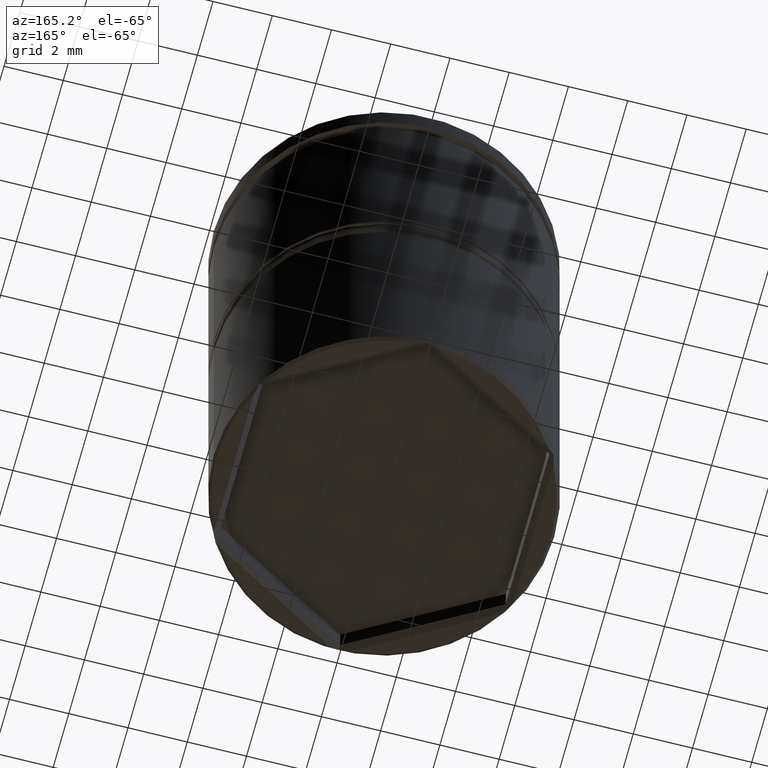
[diagram: clean part render]
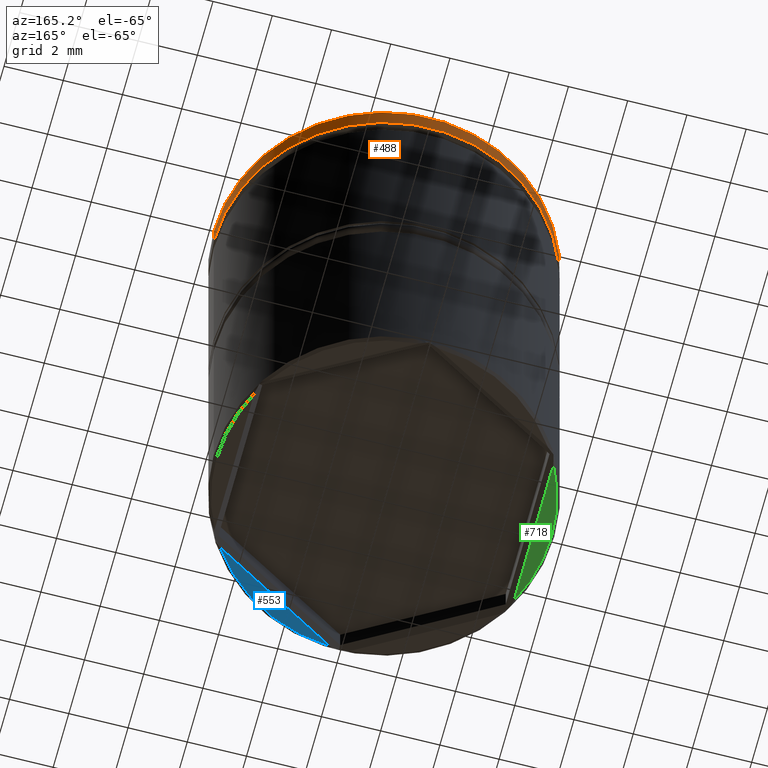
[diagram: same view with three faces highlighted in distinct colors, each labeled with its STEP entity id]
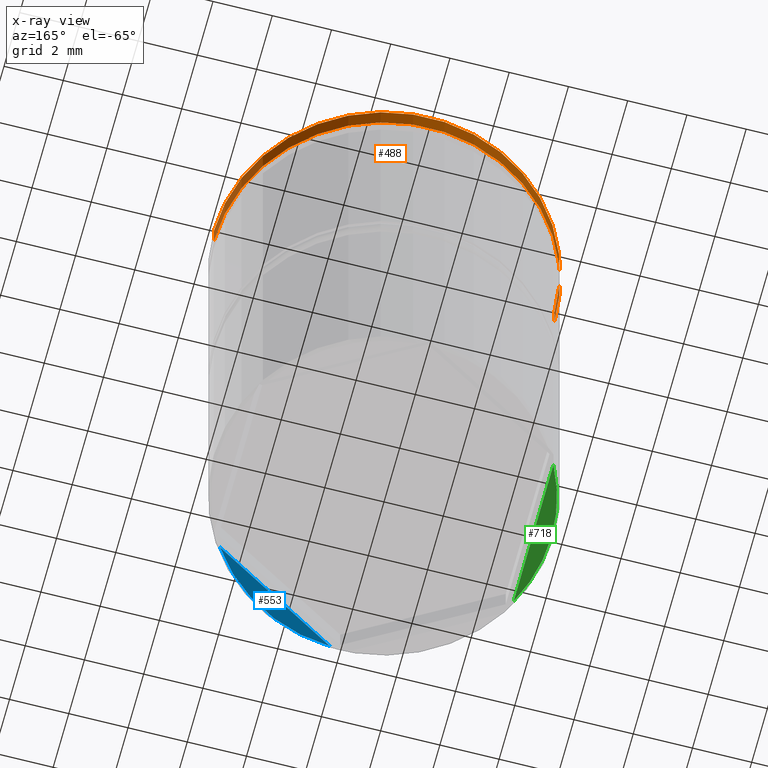
[diagram: x-ray of the same camera — body ghosted, the three highlighted faces saturated]
A machine part, auxiliary view with three faces highlighted in distinct colors.
The next image is the same camera in x-ray (body ghosted, the three faces saturated) — at least one of them is partly hidden behind the body in this view.
Their STEP definitions:

[orange] entity #488 — the highlighted cylindrical surface (partial cylindrical patch) has radius 5.75 mm, axis along (-0, -0, 1).
#4 = DIRECTION ( 'NONE',  ( -0.000000000000000000, -0.000000000000000000, 1.000000000000000000 ) ) ;
#12 = CIRCLE ( 'NONE', #1099, 5.750000000000000000 ) ;
#121 = ORIENTED_EDGE ( 'NONE', *, *, #450, .T. ) ;
#150 = CARTESIAN_POINT ( 'NONE',  ( 5.750000000000000000, 0.000000000000000000, 0.000000000000000000 ) ) ;
#199 = CARTESIAN_POINT ( 'NONE',  ( 0.000000000000000000, 0.000000000000000000, -0.09999999999999506506 ) ) ;
#242 = ORIENTED_EDGE ( 'NONE', *, *, #330, .F. ) ;
#324 = DIRECTION ( 'NONE',  ( 1.000000000000000000, 0.000000000000000000, 0.000000000000000000 ) ) ;
#330 = EDGE_CURVE ( 'NONE', #458, #359, #1087, .T. ) ;
#359 = VERTEX_POINT ( 'NONE', #1316 ) ;
#438 = DIRECTION ( 'NONE',  ( 1.000000000000000000, 0.000000000000000000, 0.000000000000000000 ) ) ;
#450 = EDGE_CURVE ( 'NONE', #1313, #359, #466, .T. ) ;
#451 = ORIENTED_EDGE ( 'NONE', *, *, #1058, .T. ) ;
#458 = VERTEX_POINT ( 'NONE', #1259 ) ;
#466 = CIRCLE ( 'NONE', #1074, 5.750000000000000000 ) ;
#488 = ADVANCED_FACE ( 'NONE', ( #1369 ), #1154, .T. ) ;
#508 = DIRECTION ( 'NONE',  ( 1.000000000000000000, 0.000000000000000000, 0.000000000000000000 ) ) ;
#564 = CARTESIAN_POINT ( 'NONE',  ( -5.750000000000000000, 7.041719095097280880E-16, -0.09999999999999506506 ) ) ;
#723 = VECTOR ( 'NONE', #1104, 1000.000000000000000 ) ;
#744 = DIRECTION ( 'NONE',  ( 0.000000000000000000, 0.000000000000000000, -1.000000000000000000 ) ) ;
#809 = CARTESIAN_POINT ( 'NONE',  ( 0.000000000000000000, 0.000000000000000000, 0.000000000000000000 ) ) ;
#821 = VECTOR ( 'NONE', #1139, 1000.000000000000000 ) ;
#897 = VERTEX_POINT ( 'NONE', #1025 ) ;
#916 = CARTESIAN_POINT ( 'NONE',  ( -5.750000000000000000, 7.041719095097280880E-16, 0.000000000000000000 ) ) ;
#958 = CARTESIAN_POINT ( 'NONE',  ( 0.000000000000000000, 0.000000000000000000, -0.8749999999999998890 ) ) ;
#985 = ORIENTED_EDGE ( 'NONE', *, *, #1121, .T. ) ;
#1010 = EDGE_LOOP ( 'NONE', ( #985, #451, #121, #242 ) ) ;
#1025 = CARTESIAN_POINT ( 'NONE',  ( -5.750000000000000000, 7.041719095097280880E-16, -0.8749999999999998890 ) ) ;
#1033 = DIRECTION ( 'NONE',  ( -0.000000000000000000, -0.000000000000000000, 1.000000000000000000 ) ) ;
#1058 = EDGE_CURVE ( 'NONE', #897, #1313, #1351, .T. ) ;
#1074 = AXIS2_PLACEMENT_3D ( 'NONE', #199, #744, #324 ) ;
#1087 = LINE ( 'NONE', #150, #723 ) ;
#1099 = AXIS2_PLACEMENT_3D ( 'NONE', #958, #4, #438 ) ;
#1104 = DIRECTION ( 'NONE',  ( -0.000000000000000000, -0.000000000000000000, 1.000000000000000000 ) ) ;
#1121 = EDGE_CURVE ( 'NONE', #458, #897, #12, .T. ) ;
#1139 = DIRECTION ( 'NONE',  ( -0.000000000000000000, -0.000000000000000000, 1.000000000000000000 ) ) ;
#1154 = CYLINDRICAL_SURFACE ( 'NONE', #1210, 5.750000000000000000 ) ;
#1210 = AXIS2_PLACEMENT_3D ( 'NONE', #809, #1033, #508 ) ;
#1259 = CARTESIAN_POINT ( 'NONE',  ( 5.750000000000000000, 0.000000000000000000, -0.8749999999999998890 ) ) ;
#1313 = VERTEX_POINT ( 'NONE', #564 ) ;
#1316 = CARTESIAN_POINT ( 'NONE',  ( 5.750000000000000000, 0.000000000000000000, -0.09999999999999506506 ) ) ;
#1351 = LINE ( 'NONE', #916, #821 ) ;
#1369 = FACE_OUTER_BOUND ( 'NONE', #1010, .T. ) ;

[blue] entity #553 — the highlighted planar face has unit normal (0, 0, -1).
#26 = DIRECTION ( 'NONE',  ( 0.000000000000000000, 0.000000000000000000, -1.000000000000000000 ) ) ;
#48 = EDGE_CURVE ( 'NONE', #1312, #1078, #506, .T. ) ;
#140 = CARTESIAN_POINT ( 'NONE',  ( 0.3306891742508328291, -5.640314235043405233, -17.50000000000000000 ) ) ;
#218 = AXIS2_PLACEMENT_3D ( 'NONE', #559, #26, #898 ) ;
#248 = ORIENTED_EDGE ( 'NONE', *, *, #1173, .T. ) ;
#262 = AXIS2_PLACEMENT_3D ( 'NONE', #1348, #1042, #504 ) ;
#372 = ORIENTED_EDGE ( 'NONE', *, *, #48, .T. ) ;
#501 = CARTESIAN_POINT ( 'NONE',  ( 4.719310825749163385, -3.106542343179425458, -17.50000000000000000 ) ) ;
#504 = DIRECTION ( 'NONE',  ( -1.000000000000000000, 0.000000000000000000, -0.000000000000000000 ) ) ;
#506 = LINE ( 'NONE', #917, #532 ) ;
#517 = PLANE ( 'NONE',  #262 ) ;
#532 = VECTOR ( 'NONE', #814, 1000.000000000000114 ) ;
#553 = ADVANCED_FACE ( 'NONE', ( #1264 ), #517, .T. ) ;
#556 = CIRCLE ( 'NONE', #218, 5.649999999999996803 ) ;
#559 = CARTESIAN_POINT ( 'NONE',  ( 0.000000000000000000, 0.000000000000000000, -17.50000000000000000 ) ) ;
#814 = DIRECTION ( 'NONE',  ( 0.8660254037844388186, 0.4999999999999997780, 0.000000000000000000 ) ) ;
#898 = DIRECTION ( 'NONE',  ( -1.000000000000000000, 0.000000000000000000, 0.000000000000000000 ) ) ;
#917 = CARTESIAN_POINT ( 'NONE',  ( 4.949999999999997513, -2.973353886326572937, -17.50000000000000000 ) ) ;
#980 = EDGE_LOOP ( 'NONE', ( #248, #372 ) ) ;
#1042 = DIRECTION ( 'NONE',  ( 0.000000000000000000, 0.000000000000000000, -1.000000000000000000 ) ) ;
#1078 = VERTEX_POINT ( 'NONE', #501 ) ;
#1173 = EDGE_CURVE ( 'NONE', #1078, #1312, #556, .T. ) ;
#1264 = FACE_OUTER_BOUND ( 'NONE', #980, .T. ) ;
#1312 = VERTEX_POINT ( 'NONE', #140 ) ;
#1348 = CARTESIAN_POINT ( 'NONE',  ( 0.000000000000000000, 5.750000000000000000, -17.50000000000000000 ) ) ;

[green] entity #718 — the highlighted planar face has unit normal (0, 0, -1).
#15 = CARTESIAN_POINT ( 'NONE',  ( -5.649999999999996803, 6.980486755139910150E-16, -17.50000000000000000 ) ) ;
#40 = DIRECTION ( 'NONE',  ( 0.000000000000000000, 0.000000000000000000, -1.000000000000000000 ) ) ;
#46 = CARTESIAN_POINT ( 'NONE',  ( 0.000000000000000000, 0.000000000000000000, -17.50000000000000000 ) ) ;
#49 = VERTEX_POINT ( 'NONE', #1236 ) ;
#63 = DIRECTION ( 'NONE',  ( -1.000000000000000000, 0.000000000000000000, 0.000000000000000000 ) ) ;
#162 = DIRECTION ( 'NONE',  ( 0.000000000000000000, 0.000000000000000000, -1.000000000000000000 ) ) ;
#331 = CIRCLE ( 'NONE', #444, 5.649999999999996803 ) ;
#350 = FACE_OUTER_BOUND ( 'NONE', #1084, .T. ) ;
#358 = DIRECTION ( 'NONE',  ( 0.000000000000000000, 0.000000000000000000, -1.000000000000000000 ) ) ;
#374 = AXIS2_PLACEMENT_3D ( 'NONE', #908, #162, #1336 ) ;
#381 = VERTEX_POINT ( 'NONE', #469 ) ;
#389 = EDGE_CURVE ( 'NONE', #381, #674, #1265, .T. ) ;
#444 = AXIS2_PLACEMENT_3D ( 'NONE', #46, #40, #63 ) ;
#449 = CARTESIAN_POINT ( 'NONE',  ( 0.000000000000000000, 5.750000000000000000, -17.50000000000000000 ) ) ;
#469 = CARTESIAN_POINT ( 'NONE',  ( -5.049999999999998934, -2.533771891863980663, -17.50000000000000000 ) ) ;
#551 = PLANE ( 'NONE',  #676 ) ;
#554 = VECTOR ( 'NONE', #961, 1000.000000000000000 ) ;
#650 = EDGE_CURVE ( 'NONE', #49, #381, #1300, .T. ) ;
#674 = VERTEX_POINT ( 'NONE', #15 ) ;
#676 = AXIS2_PLACEMENT_3D ( 'NONE', #449, #358, #1088 ) ;
#718 = ADVANCED_FACE ( 'NONE', ( #350 ), #551, .T. ) ;
#865 = EDGE_CURVE ( 'NONE', #674, #49, #331, .T. ) ;
#901 = ORIENTED_EDGE ( 'NONE', *, *, #650, .T. ) ;
#908 = CARTESIAN_POINT ( 'NONE',  ( 0.000000000000000000, 0.000000000000000000, -17.50000000000000000 ) ) ;
#944 = ORIENTED_EDGE ( 'NONE', *, *, #865, .T. ) ;
#961 = DIRECTION ( 'NONE',  ( 0.000000000000000000, -1.000000000000000000, 0.000000000000000000 ) ) ;
#1084 = EDGE_LOOP ( 'NONE', ( #1201, #944, #901 ) ) ;
#1088 = DIRECTION ( 'NONE',  ( -1.000000000000000000, 0.000000000000000000, -0.000000000000000000 ) ) ;
#1201 = ORIENTED_EDGE ( 'NONE', *, *, #389, .T. ) ;
#1236 = CARTESIAN_POINT ( 'NONE',  ( -5.049999999999998934, 2.533771891863980663, -17.50000000000000000 ) ) ;
#1265 = CIRCLE ( 'NONE', #374, 5.649999999999996803 ) ;
#1300 = LINE ( 'NONE', #1317, #554 ) ;
#1317 = CARTESIAN_POINT ( 'NONE',  ( -5.049999999999998934, -2.800148805569682153, -17.50000000000000000 ) ) ;
#1336 = DIRECTION ( 'NONE',  ( -1.000000000000000000, 0.000000000000000000, 0.000000000000000000 ) ) ;